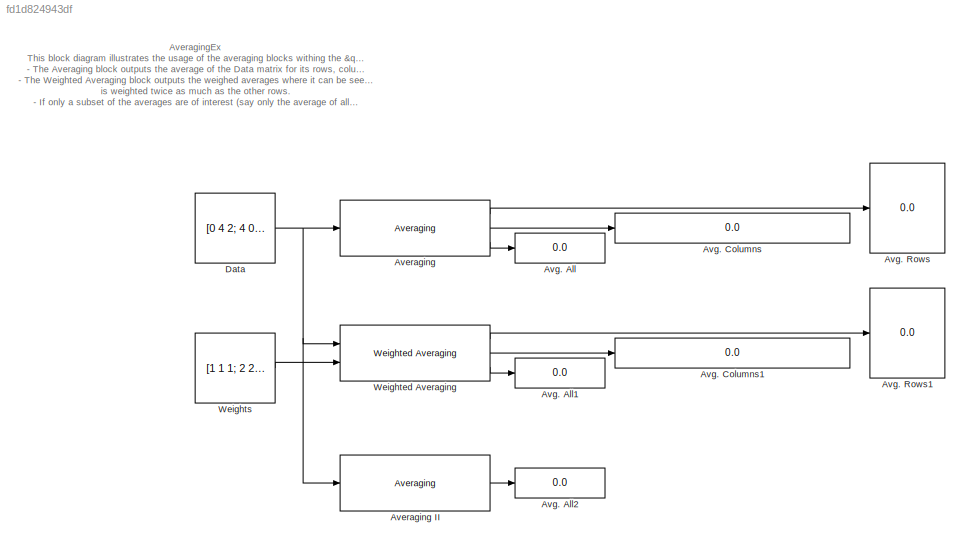
MODEL slx_fd1d824943df
KIND model
CONFIG AbsTol = auto
CONFIG FixedStep = auto
CONFIG MaxStep = auto
CONFIG MinStep = auto
CONFIG RelTol = 1e-3
CONFIG SampleTimeConstraint = Unconstrained
CONFIG Solver = ode45
CONFIG SolverMode = Auto
CONFIG SolverName = ode45
CONFIG StartTime = 0.0
CONFIG StopTime = 10.0
BLOCK [Reference] Averaging  REF=lib_GenTools_Averaging/Averaging
  BN_M = gcb
  Ports = [1, 3]
  SourceBlock = lib_GenTools_Averaging/Averaging
  SourceType = TSAT: Averaging Block
  avg_all_M = on
  avg_cols_M = on
  avg_rows_M = on
BLOCK [Reference] Averaging II  REF=lib_GenTools_Averaging/Averaging
  BN_M = gcb
  Ports = [1, 1]
  SourceBlock = lib_GenTools_Averaging/Averaging
  SourceType = TSAT: Averaging Block
  avg_all_M = on
  avg_cols_M = off
  avg_rows_M = off
BLOCK [Display] Avg. All
  Decimation = 1
  Ports = [1]
BLOCK [Display] Avg. All1
  Decimation = 1
  Ports = [1]
BLOCK [Display] Avg. All2
  Decimation = 1
  Ports = [1]
BLOCK [Display] Avg. Columns
  Decimation = 1
  Ports = [1]
BLOCK [Display] Avg. Columns1
  Decimation = 1
  Ports = [1]
BLOCK [Display] Avg. Rows
  Decimation = 1
  Ports = [1]
BLOCK [Display] Avg. Rows1
  Decimation = 1
  Ports = [1]
BLOCK [Constant] Data
  Value = [0 4 2; 4 0 -4; 1 -5 7; 8 -2 1]
BLOCK [Reference] Weighted Averaging  REF=lib_GenTools_WeightedAveraging/Weighted Averaging
  BN_M = gcb
  Ports = [2, 3]
  SourceBlock = lib_GenTools_WeightedAveraging/Weighted Averaging
  SourceType = TSAT: Weighted Averaging Block
  avg_all_M = on
  avg_cols_M = on
  avg_rows_M = on
BLOCK [Constant] Weights
  Value = [1 1 1; 2 2 2; 1 1 1; 1 1 1]
ANNOTATION (root): AveragingEx This block diagram illustrates the usage of the averaging blocks withing the "GenTools" library of TSAT. - The Averaging block outputs the average of the Data matrix for its rows, columns, and all elements - The Weighted Averaging block outputs the weighed averages where it can be seen the the 2nd row is weighted twice as much as the other rows. - If only a subset of the averages are o...<+167ch>
LINE Averaging II:1 -> Avg. All2:1
LINE Averaging:1 -> Avg. Rows:1
LINE Averaging:2 -> Avg. Columns:1
LINE Averaging:3 -> Avg. All:1
NET Data:1 -> Averaging II:1, Averaging:1, Weighted Averaging:1
LINE Weighted Averaging:1 -> Avg. Rows1:1
LINE Weighted Averaging:2 -> Avg. Columns1:1
LINE Weighted Averaging:3 -> Avg. All1:1
LINE Weights:1 -> Weighted Averaging:2
note: NET lines group one-source signal fan-out (src -> all destinations, sorted); 1:1 wires keep LINE
